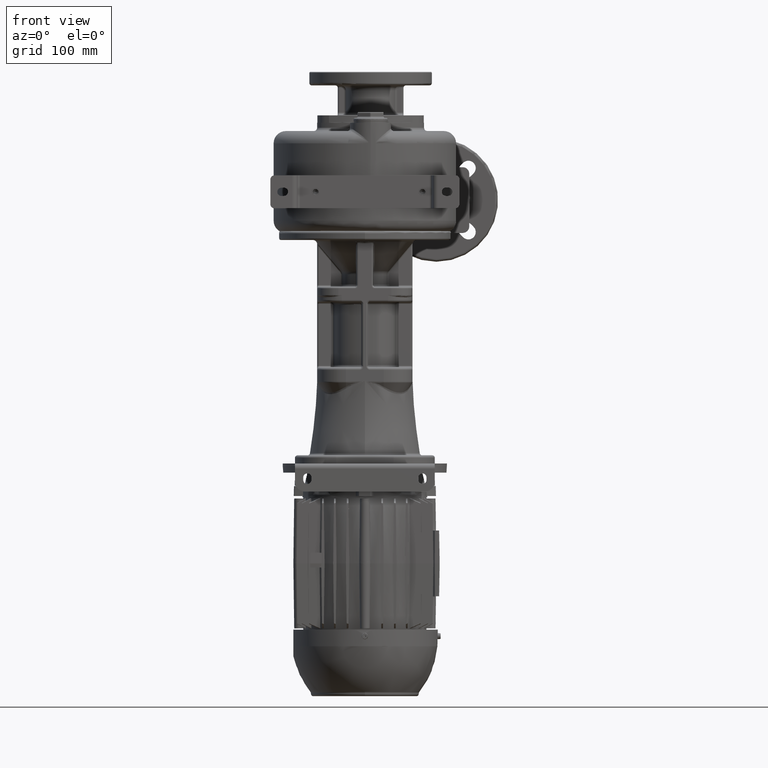
[diagram: clean part render]
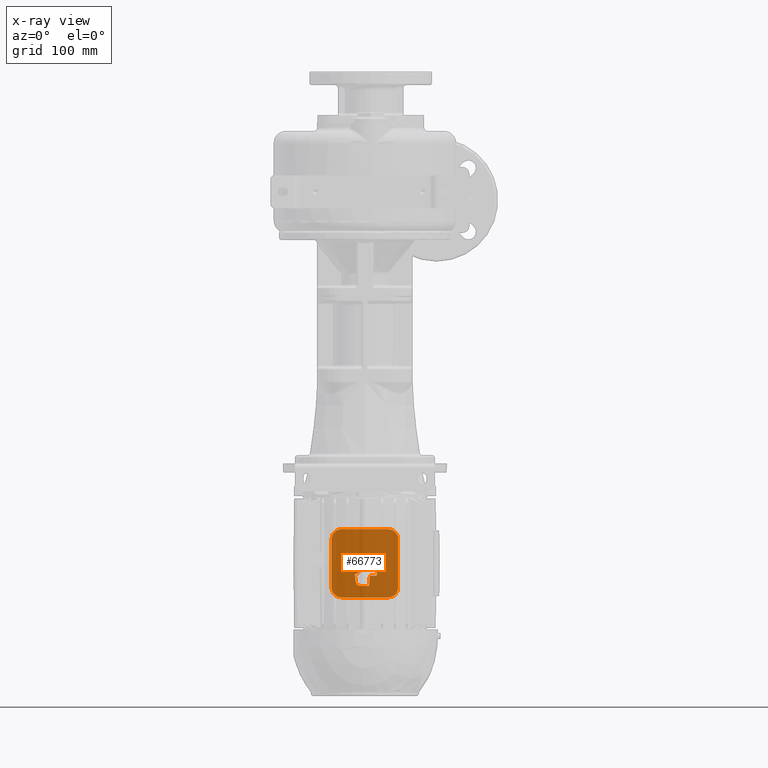
[diagram: x-ray — body ghosted, one internal face saturated and labeled with its STEP entity id]
A machine part, front view, then the same camera in x-ray: the body is ghosted and one INTERNAL B-rep face — a face not visible from any outside direction — is saturated and labeled: STEP entity #66773.
In plain terms, the highlighted planar face has unit normal (0, 1, 0).
Its self-contained STEP definition (entity closure, byte-faithful):
#14865=CARTESIAN_POINT('',(-2.838E1,2.E2,-4.226E2));
#14866=DIRECTION('',(0.E0,-1.E0,0.E0));
#14867=DIRECTION('',(0.E0,0.E0,1.E0));
#14868=AXIS2_PLACEMENT_3D('',#14865,#14866,#14867);
#14870=CARTESIAN_POINT('',(-2.838E1,2.E2,-4.814E2));
#14871=DIRECTION('',(0.E0,-1.E0,0.E0));
#14872=DIRECTION('',(-1.E0,0.E0,1.879121284655E-14));
#14873=AXIS2_PLACEMENT_3D('',#14870,#14871,#14872);
#14875=DIRECTION('',(1.E0,0.E0,-1.515824502956E-14));
#14876=VECTOR('',#14875,1.499999999999E1);
#14877=CARTESIAN_POINT('',(1.201621170687E-11,2.E2,-4.52E2));
#14878=LINE('',#14877,#14876);
#14879=CARTESIAN_POINT('',(-8.716479881744E-14,2.E2,-4.58E2));
#14880=DIRECTION('',(0.E0,1.E0,0.E0));
#14881=DIRECTION('',(-9.961946980917E-1,0.E0,8.715574274764E-2));
#14882=AXIS2_PLACEMENT_3D('',#14879,#14880,#14881);
#14884=DIRECTION('',(8.715574274765E-2,0.E0,9.961946980917E-1));
#14885=VECTOR('',#14884,2.053683799856E0);
#14886=CARTESIAN_POINT('',(-6.156158525494E0,2.E2,-4.595229344565E2));
#14887=LINE('',#14886,#14885);
#14888=CARTESIAN_POINT('',(-1.213332671404E1,2.E2,-4.59E2));
#14889=DIRECTION('',(0.E0,1.E0,0.E0));
#14890=DIRECTION('',(9.961946980917E-1,0.E0,-8.715574274764E-2));
#14891=AXIS2_PLACEMENT_3D('',#14888,#14889,#14890);
#14893=DIRECTION('',(-8.715574274765E-2,0.E0,9.961946980917E-1));
#14894=VECTOR('',#14893,8.690646551460E0);
#14895=CARTESIAN_POINT('',(-1.137588695889E1,2.E2,-4.736575760176E2));
#14896=LINE('',#14895,#14894);
#14897=CARTESIAN_POINT('',(-5.E0,2.E2,-4.730997581887E2));
#14898=DIRECTION('',(0.E0,1.E0,0.E0));
#14899=DIRECTION('',(0.E0,0.E0,-1.E0));
#14900=AXIS2_PLACEMENT_3D('',#14897,#14898,#14899);
#14902=DIRECTION('',(1.E0,0.E0,1.705302565824E-14));
#14903=VECTOR('',#14902,1.E1);
#14904=CARTESIAN_POINT('',(-5.E0,2.E2,-4.795E2));
#14905=LINE('',#14904,#14903);
#14906=DIRECTION('',(-8.715574274766E-2,0.E0,-9.961946980917E-1));
#14907=VECTOR('',#14906,1.254774796929E1);
#14908=CARTESIAN_POINT('',(6.093608294074E0,2.E2,-4.67E2));
#14909=LINE('',#14908,#14907);
#14910=DIRECTION('',(-1.E0,0.E0,-2.755551035879E-14));
#14911=VECTOR('',#14910,8.251477562298E0);
#14912=CARTESIAN_POINT('',(1.434508585637E1,2.E2,-4.67E2));
#14913=LINE('',#14912,#14911);
#14914=DIRECTION('',(-4.361938736534E-2,0.E0,-9.990482215819E-1));
#14915=VECTOR('',#14914,1.501429027745E1);
#14916=CARTESIAN_POINT('',(1.5E1,2.E2,-4.52E2));
#14917=LINE('',#14916,#14915);
#14918=DIRECTION('',(0.E0,0.E0,1.E0));
#14919=VECTOR('',#14918,5.88E1);
#14920=CARTESIAN_POINT('',(-4.048E1,2.E2,-4.814E2));
#14921=LINE('',#14920,#14919);
#20293=DIRECTION('',(-1.E0,0.E0,-1.602097444409E-14));
#20294=VECTOR('',#20293,5.676900022199E1);
#20295=CARTESIAN_POINT('',(2.838900022199E1,2.E2,-4.935E2));
#20296=LINE('',#20295,#20294);
#20301=CARTESIAN_POINT('',(4.048900022199E1,2.E2,-4.814E2));
#20302=CARTESIAN_POINT('',(4.048900022199E1,2.E2,-4.815321016343E2));
#20303=CARTESIAN_POINT('',(4.048467688961E1,2.E2,-4.817961482565E2));
#20304=CARTESIAN_POINT('',(4.046521847972E1,2.E2,-4.821920306181E2));
#20305=CARTESIAN_POINT('',(4.043281940638E1,2.E2,-4.825868783061E2));
#20306=CARTESIAN_POINT('',(4.038756997565E1,2.E2,-4.829800168020E2));
#20307=CARTESIAN_POINT('',(4.032956643641E1,2.E2,-4.833710220556E2));
#20308=CARTESIAN_POINT('',(4.025885328388E1,2.E2,-4.837597938022E2));
#20309=CARTESIAN_POINT('',(4.017548340956E1,2.E2,-4.841460670503E2));
#20310=CARTESIAN_POINT('',(4.007949468809E1,2.E2,-4.845296118190E2));
#20311=CARTESIAN_POINT('',(3.997093970519E1,2.E2,-4.849101207108E2));
#20312=CARTESIAN_POINT('',(3.984978848309E1,2.E2,-4.852875146268E2));
#20313=CARTESIAN_POINT('',(3.971621456499E1,2.E2,-4.856610621722E2));
#20314=CARTESIAN_POINT('',(3.957057477891E1,2.E2,-4.860297639216E2));
#20315=CARTESIAN_POINT('',(3.941305322001E1,2.E2,-4.863932542336E2));
#20316=CARTESIAN_POINT('',(3.924364094166E1,2.E2,-4.867515521118E2));
#20317=CARTESIAN_POINT('',(3.906272975128E1,2.E2,-4.871038324921E2));
#20318=CARTESIAN_POINT('',(3.887060999119E1,2.E2,-4.874496263176E2));
#20319=CARTESIAN_POINT('',(3.866738070866E1,2.E2,-4.877888190665E2));
#20320=CARTESIAN_POINT('',(3.845315801964E1,2.E2,-4.881212244929E2));
#20321=CARTESIAN_POINT('',(3.822815332104E1,2.E2,-4.884465040373E2));
#20322=CARTESIAN_POINT('',(3.799256352413E1,2.E2,-4.887643580427E2));
#20323=CARTESIAN_POINT('',(3.774653608001E1,2.E2,-4.890745579129E2));
#20324=CARTESIAN_POINT('',(3.749015924093E1,2.E2,-4.893769242788E2));
#20325=CARTESIAN_POINT('',(3.722394552824E1,2.E2,-4.896707990968E2));
#20326=CARTESIAN_POINT('',(3.694842090087E1,2.E2,-4.899556202039E2));
#20327=CARTESIAN_POINT('',(3.666377050125E1,2.E2,-4.902312238624E2));
#20328=CARTESIAN_POINT('',(3.637019452453E1,2.E2,-4.904974096670E2));
#20329=CARTESIAN_POINT('',(3.606821894007E1,2.E2,-4.907537079807E2));
#20330=CARTESIAN_POINT('',(3.575819846144E1,2.E2,-4.909998504492E2));
#20331=CARTESIAN_POINT('',(3.544036313757E1,2.E2,-4.912356741280E2));
#20332=CARTESIAN_POINT('',(3.511497126187E1,2.E2,-4.914609907968E2));
#20333=CARTESIAN_POINT('',(3.478229803985E1,2.E2,-4.916756021014E2));
#20334=CARTESIAN_POINT('',(3.444266678421E1,2.E2,-4.918792850139E2));
#20335=CARTESIAN_POINT('',(3.409641294914E1,2.E2,-4.920718218543E2));
#20336=CARTESIAN_POINT('',(3.374389313059E1,2.E2,-4.922529944997E2));
#20337=CARTESIAN_POINT('',(3.338563644244E1,2.E2,-4.924225208902E2));
#20338=CARTESIAN_POINT('',(3.302212275252E1,2.E2,-4.925801836073E2));
#20339=CARTESIAN_POINT('',(3.265361422282E1,2.E2,-4.927258731803E2));
#20340=CARTESIAN_POINT('',(3.228057285830E1,2.E2,-4.928594055579E2));
#20341=CARTESIAN_POINT('',(3.190345649320E1,2.E2,-4.929806252700E2));
#20342=CARTESIAN_POINT('',(3.152264970910E1,2.E2,-4.930894192485E2));
#20343=CARTESIAN_POINT('',(3.113844252620E1,2.E2,-4.931857059532E2));
#20344=CARTESIAN_POINT('',(3.075124485281E1,2.E2,-4.932693769330E2));
#20345=CARTESIAN_POINT('',(3.036147017844E1,2.E2,-4.933403385745E2));
#20346=CARTESIAN_POINT('',(2.996953097801E1,2.E2,-4.933985104975E2));
#20347=CARTESIAN_POINT('',(2.957589117527E1,2.E2,-4.934438207355E2));
#20348=CARTESIAN_POINT('',(2.918097402046E1,2.E2,-4.934762212762E2));
#20349=CARTESIAN_POINT('',(2.878517748331E1,2.E2,-4.934956752164E2));
#20350=CARTESIAN_POINT('',(2.852111400346E1,2.E2,-4.935E2));
#20351=CARTESIAN_POINT('',(2.838900022199E1,2.E2,-4.935E2));
#20357=DIRECTION('',(0.E0,0.E0,-1.E0));
#20358=VECTOR('',#20357,5.88E1);
#20359=CARTESIAN_POINT('',(4.048900022199E1,2.E2,-4.226E2));
#20360=LINE('',#20359,#20358);
#20365=CARTESIAN_POINT('',(2.838900022200E1,2.E2,-4.105E2));
#20366=CARTESIAN_POINT('',(2.852111221819E1,2.E2,-4.105E2));
#20367=CARTESIAN_POINT('',(2.878517215971E1,2.E2,-4.105043246662E2));
#20368=CARTESIAN_POINT('',(2.918096354309E1,2.E2,-4.105237780934E2));
#20369=CARTESIAN_POINT('',(2.957587552699E1,2.E2,-4.105561777796E2));
#20370=CARTESIAN_POINT('',(2.996951034472E1,2.E2,-4.106014868382E2));
#20371=CARTESIAN_POINT('',(3.036144511685E1,2.E2,-4.106596573332E2));
#20372=CARTESIAN_POINT('',(3.075121651546E1,2.E2,-4.107306174510E2));
#20373=CARTESIAN_POINT('',(3.113841357654E1,2.E2,-4.108142872953E2));
#20374=CARTESIAN_POINT('',(3.152262059375E1,2.E2,-4.109105729569E2));
#20375=CARTESIAN_POINT('',(3.190342542965E1,2.E2,-4.110193653516E2));
#20376=CARTESIAN_POINT('',(3.228053701507E1,2.E2,-4.111405823285E2));
#20377=CARTESIAN_POINT('',(3.265357452109E1,2.E2,-4.112741119320E2));
#20378=CARTESIAN_POINT('',(3.302207741788E1,2.E2,-4.114197976942E2));
#20379=CARTESIAN_POINT('',(3.338558693756E1,2.E2,-4.115774566768E2));
#20380=CARTESIAN_POINT('',(3.374384506591E1,2.E2,-4.117469818276E2));
#20381=CARTESIAN_POINT('',(3.409635350373E1,2.E2,-4.119281466533E2));
#20382=CARTESIAN_POINT('',(3.444258224037E1,2.E2,-4.121206665420E2));
#20383=CARTESIAN_POINT('',(3.478219777720E1,2.E2,-4.123243355548E2));
#20384=CARTESIAN_POINT('',(3.511488522313E1,2.E2,-4.125389513676E2));
#20385=CARTESIAN_POINT('',(3.544028966461E1,2.E2,-4.127642733427E2));
#20386=CARTESIAN_POINT('',(3.575809370612E1,2.E2,-4.130000700273E2));
#20387=CARTESIAN_POINT('',(3.606806672847E1,2.E2,-4.132461677470E2));
#20388=CARTESIAN_POINT('',(3.637002701408E1,2.E2,-4.135024435762E2));
#20389=CARTESIAN_POINT('',(3.666359985084E1,2.E2,-4.137686163699E2));
#20390=CARTESIAN_POINT('',(3.694825150429E1,2.E2,-4.140442103746E2));
#20391=CARTESIAN_POINT('',(3.722377934317E1,2.E2,-4.143290235026E2));
#20392=CARTESIAN_POINT('',(3.748998967344E1,2.E2,-4.146228825932E2));
#20393=CARTESIAN_POINT('',(3.774637136829E1,2.E2,-4.149252406328E2));
#20394=CARTESIAN_POINT('',(3.799245190207E1,2.E2,-4.152354947627E2));
#20395=CARTESIAN_POINT('',(3.822808318975E1,2.E2,-4.155533977200E2));
#20396=CARTESIAN_POINT('',(3.845307431167E1,2.E2,-4.158786512385E2));
#20397=CARTESIAN_POINT('',(3.866727958217E1,2.E2,-4.162110184592E2));
#20398=CARTESIAN_POINT('',(3.887053130202E1,2.E2,-4.165502358262E2));
#20399=CARTESIAN_POINT('',(3.906269777281E1,2.E2,-4.168961054467E2));
#20400=CARTESIAN_POINT('',(3.924364749023E1,2.E2,-4.172484596191E2));
#20401=CARTESIAN_POINT('',(3.941306972166E1,2.E2,-4.176067826426E2));
#20402=CARTESIAN_POINT('',(3.957057817092E1,2.E2,-4.179702445176E2));
#20403=CARTESIAN_POINT('',(3.971623359142E1,2.E2,-4.183389857709E2));
#20404=CARTESIAN_POINT('',(3.984983809070E1,2.E2,-4.187126283702E2));
#20405=CARTESIAN_POINT('',(3.997100250173E1,2.E2,-4.190900855768E2));
#20406=CARTESIAN_POINT('',(4.007954965159E1,2.E2,-4.194705938811E2));
#20407=CARTESIAN_POINT('',(4.017552943789E1,2.E2,-4.198541316453E2));
#20408=CARTESIAN_POINT('',(4.025888441385E1,2.E2,-4.202403655066E2));
#20409=CARTESIAN_POINT('',(4.032958465237E1,2.E2,-4.206290915363E2));
#20410=CARTESIAN_POINT('',(4.038757801645E1,2.E2,-4.210200482617E2));
#20411=CARTESIAN_POINT('',(4.043282161008E1,2.E2,-4.214131471861E2));
#20412=CARTESIAN_POINT('',(4.046521905518E1,2.E2,-4.218079792436E2));
#20413=CARTESIAN_POINT('',(4.048467704162E1,2.E2,-4.222038578218E2));
#20414=CARTESIAN_POINT('',(4.048900022199E1,2.E2,-4.224679001499E2));
#20415=CARTESIAN_POINT('',(4.048900022199E1,2.E2,-4.226E2));
#20421=DIRECTION('',(1.E0,-2.393133057585E-13,1.602097444408E-14));
#20422=VECTOR('',#20421,5.676900022200E1);
#20423=CARTESIAN_POINT('',(-2.838E1,2.E2,-4.105E2));
#20424=LINE('',#20423,#20422);
#44914=CARTESIAN_POINT('',(4.048900022199E1,2.E2,-4.226E2));
#44916=VERTEX_POINT('',#44914);
#44918=CARTESIAN_POINT('',(2.838900022200E1,2.E2,-4.105E2));
#44920=VERTEX_POINT('',#44918);
#44922=VERTEX_POINT('',#20301);
#44923=VERTEX_POINT('',#20351);
#44929=CARTESIAN_POINT('',(-4.048E1,2.E2,-4.226E2));
#44931=VERTEX_POINT('',#44929);
#44932=CARTESIAN_POINT('',(-2.838E1,2.E2,-4.105E2));
#44933=VERTEX_POINT('',#44932);
#44938=CARTESIAN_POINT('',(-4.048E1,2.E2,-4.814E2));
#44939=CARTESIAN_POINT('',(-2.838E1,2.E2,-4.935E2));
#44940=VERTEX_POINT('',#44938);
#44941=VERTEX_POINT('',#44939);
#45075=CARTESIAN_POINT('',(1.201621170687E-11,2.E2,-4.52E2));
#45076=CARTESIAN_POINT('',(1.5E1,2.E2,-4.52E2));
#45077=VERTEX_POINT('',#45075);
#45078=VERTEX_POINT('',#45076);
#45079=CARTESIAN_POINT('',(1.434508585637E1,2.E2,-4.67E2));
#45080=VERTEX_POINT('',#45079);
#45081=CARTESIAN_POINT('',(-5.E0,2.E2,-4.795E2));
#45082=CARTESIAN_POINT('',(5.E0,2.E2,-4.795E2));
#45083=VERTEX_POINT('',#45081);
#45084=VERTEX_POINT('',#45082);
#45085=CARTESIAN_POINT('',(6.093608294074E0,2.E2,-4.67E2));
#45086=VERTEX_POINT('',#45085);
#45087=CARTESIAN_POINT('',(-1.137588695889E1,2.E2,-4.736575760176E2));
#45088=VERTEX_POINT('',#45087);
#45089=CARTESIAN_POINT('',(-5.977168188549E0,2.E2,-4.574770655435E2));
#45090=VERTEX_POINT('',#45089);
#45091=CARTESIAN_POINT('',(-1.213332671404E1,2.E2,-4.65E2));
#45092=VERTEX_POINT('',#45091);
#48574=CARTESIAN_POINT('',(-6.156158525494E0,2.E2,-4.595229344565E2));
#48575=VERTEX_POINT('',#48574);
#66729=CARTESIAN_POINT('',(-4.048E1,2.E2,-4.935E2));
#66730=DIRECTION('',(0.E0,1.E0,0.E0));
#66731=DIRECTION('',(-1.E0,0.E0,-1.476638648832E-14));
#66732=AXIS2_PLACEMENT_3D('',#66729,#66730,#66731);
#66733=PLANE('',#66732);
#66735=ORIENTED_EDGE('',*,*,#66734,.T.);
#66737=ORIENTED_EDGE('',*,*,#66736,.F.);
#66739=ORIENTED_EDGE('',*,*,#66738,.T.);
#66741=ORIENTED_EDGE('',*,*,#66740,.T.);
#66743=ORIENTED_EDGE('',*,*,#66742,.T.);
#66745=ORIENTED_EDGE('',*,*,#66744,.T.);
#66747=ORIENTED_EDGE('',*,*,#66746,.T.);
#66749=ORIENTED_EDGE('',*,*,#66748,.F.);
#66750=EDGE_LOOP('',(#66735,#66737,#66739,#66741,#66743,#66745,#66747,#66749));
#66751=FACE_OUTER_BOUND('',#66750,.F.);
#66752=ORIENTED_EDGE('',*,*,#66712,.F.);
#66754=ORIENTED_EDGE('',*,*,#66753,.F.);
#66756=ORIENTED_EDGE('',*,*,#66755,.F.);
#66758=ORIENTED_EDGE('',*,*,#66757,.T.);
#66760=ORIENTED_EDGE('',*,*,#66759,.F.);
#66762=ORIENTED_EDGE('',*,*,#66761,.F.);
#66764=ORIENTED_EDGE('',*,*,#66763,.T.);
#66766=ORIENTED_EDGE('',*,*,#66765,.F.);
#66768=ORIENTED_EDGE('',*,*,#66767,.F.);
#66770=ORIENTED_EDGE('',*,*,#66769,.F.);
#66771=EDGE_LOOP('',(#66752,#66754,#66756,#66758,#66760,#66762,#66764,#66766,
#66768,#66770));
#66772=FACE_BOUND('',#66771,.F.);
#66773=ADVANCED_FACE('',(#66751,#66772),#66733,.F.);
#14869=CIRCLE('',#14868,1.21E1);
#14874=CIRCLE('',#14873,1.21E1);
#14883=CIRCLE('',#14882,5.999999999998E0);
#14892=CIRCLE('',#14891,6.E0);
#14901=CIRCLE('',#14900,6.400241811272E0);
#20352=B_SPLINE_CURVE_WITH_KNOTS('',3,(#20301,#20302,#20303,#20304,#20305,
#20306,#20307,#20308,#20309,#20310,#20311,#20312,#20313,#20314,#20315,#20316,
#20317,#20318,#20319,#20320,#20321,#20322,#20323,#20324,#20325,#20326,#20327,
#20328,#20329,#20330,#20331,#20332,#20333,#20334,#20335,#20336,#20337,#20338,
#20339,#20340,#20341,#20342,#20343,#20344,#20345,#20346,#20347,#20348,#20349,
#20350,#20351),.UNSPECIFIED.,.F.,.F.,(4,1,1,1,1,1,1,1,1,1,1,1,1,1,1,1,1,1,1,1,1,
1,1,1,1,1,1,1,1,1,1,1,1,1,1,1,1,1,1,1,1,1,1,1,1,1,1,1,4),(0.E0,
2.083333333333E-2,4.166666666667E-2,6.25E-2,8.333333333333E-2,1.041666666667E-1,
1.25E-1,1.458333333333E-1,1.666666666667E-1,1.875E-1,2.083333333333E-1,
2.291666666667E-1,2.5E-1,2.708333333333E-1,2.916666666667E-1,3.125E-1,
3.333333333333E-1,3.541666666667E-1,3.75E-1,3.958333333333E-1,4.166666666667E-1,
4.375E-1,4.583333333333E-1,4.791666666667E-1,5.E-1,5.208333333333E-1,
5.416666666667E-1,5.625E-1,5.833333333333E-1,6.041666666667E-1,6.25E-1,
6.458333333333E-1,6.666666666667E-1,6.875E-1,7.083333333333E-1,
7.291666666667E-1,7.5E-1,7.708333333333E-1,7.916666666667E-1,8.125E-1,
8.333333333333E-1,8.541666666667E-1,8.75E-1,8.958333333333E-1,9.166666666667E-1,
9.375E-1,9.583333333333E-1,9.791666666667E-1,1.E0),.UNSPECIFIED.);
#20416=B_SPLINE_CURVE_WITH_KNOTS('',3,(#20365,#20366,#20367,#20368,#20369,
#20370,#20371,#20372,#20373,#20374,#20375,#20376,#20377,#20378,#20379,#20380,
#20381,#20382,#20383,#20384,#20385,#20386,#20387,#20388,#20389,#20390,#20391,
#20392,#20393,#20394,#20395,#20396,#20397,#20398,#20399,#20400,#20401,#20402,
#20403,#20404,#20405,#20406,#20407,#20408,#20409,#20410,#20411,#20412,#20413,
#20414,#20415),.UNSPECIFIED.,.F.,.F.,(4,1,1,1,1,1,1,1,1,1,1,1,1,1,1,1,1,1,1,1,1,
1,1,1,1,1,1,1,1,1,1,1,1,1,1,1,1,1,1,1,1,1,1,1,1,1,1,1,4),(0.E0,
2.083333333333E-2,4.166666666667E-2,6.25E-2,8.333333333333E-2,1.041666666667E-1,
1.25E-1,1.458333333333E-1,1.666666666667E-1,1.875E-1,2.083333333333E-1,
2.291666666667E-1,2.5E-1,2.708333333333E-1,2.916666666667E-1,3.125E-1,
3.333333333333E-1,3.541666666667E-1,3.75E-1,3.958333333333E-1,4.166666666667E-1,
4.375E-1,4.583333333333E-1,4.791666666667E-1,5.E-1,5.208333333333E-1,
5.416666666667E-1,5.625E-1,5.833333333333E-1,6.041666666667E-1,6.25E-1,
6.458333333333E-1,6.666666666667E-1,6.875E-1,7.083333333333E-1,
7.291666666667E-1,7.5E-1,7.708333333333E-1,7.916666666667E-1,8.125E-1,
8.333333333333E-1,8.541666666667E-1,8.75E-1,8.958333333333E-1,9.166666666667E-1,
9.375E-1,9.583333333333E-1,9.791666666667E-1,1.E0),.UNSPECIFIED.);
#66712=EDGE_CURVE('',#45077,#45078,#14878,.T.);
#66734=EDGE_CURVE('',#44940,#44931,#14921,.T.);
#66736=EDGE_CURVE('',#44933,#44931,#14869,.T.);
#66738=EDGE_CURVE('',#44933,#44920,#20424,.T.);
#66740=EDGE_CURVE('',#44920,#44916,#20416,.T.);
#66742=EDGE_CURVE('',#44916,#44922,#20360,.T.);
#66744=EDGE_CURVE('',#44922,#44923,#20352,.T.);
#66746=EDGE_CURVE('',#44923,#44941,#20296,.T.);
#66748=EDGE_CURVE('',#44940,#44941,#14874,.T.);
#66753=EDGE_CURVE('',#45090,#45077,#14883,.T.);
#66755=EDGE_CURVE('',#48575,#45090,#14887,.T.);
#66757=EDGE_CURVE('',#48575,#45092,#14892,.T.);
#66759=EDGE_CURVE('',#45088,#45092,#14896,.T.);
#66761=EDGE_CURVE('',#45083,#45088,#14901,.T.);
#66763=EDGE_CURVE('',#45083,#45084,#14905,.T.);
#66765=EDGE_CURVE('',#45086,#45084,#14909,.T.);
#66767=EDGE_CURVE('',#45080,#45086,#14913,.T.);
#66769=EDGE_CURVE('',#45078,#45080,#14917,.T.);